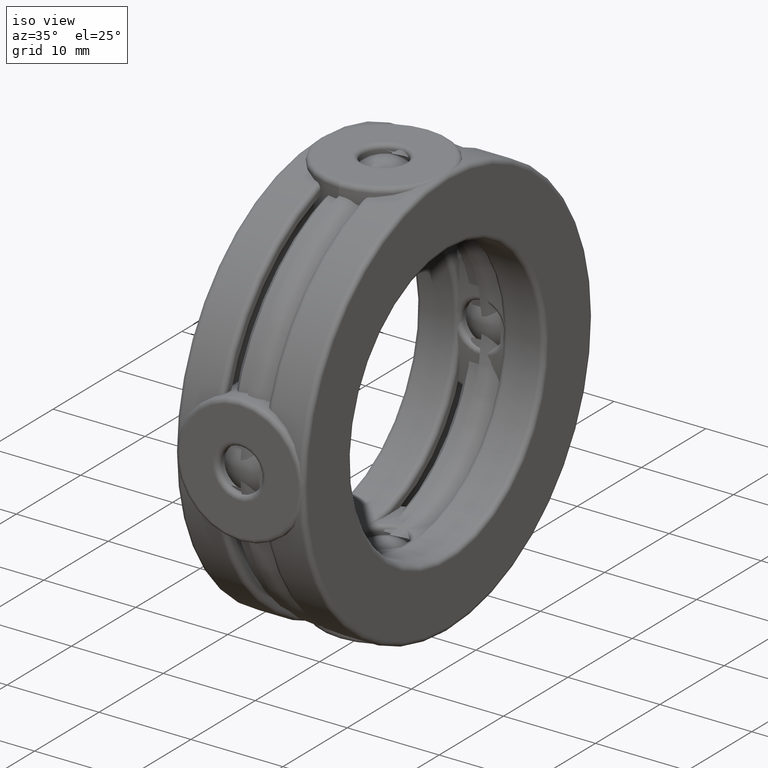
[diagram: clean part render]
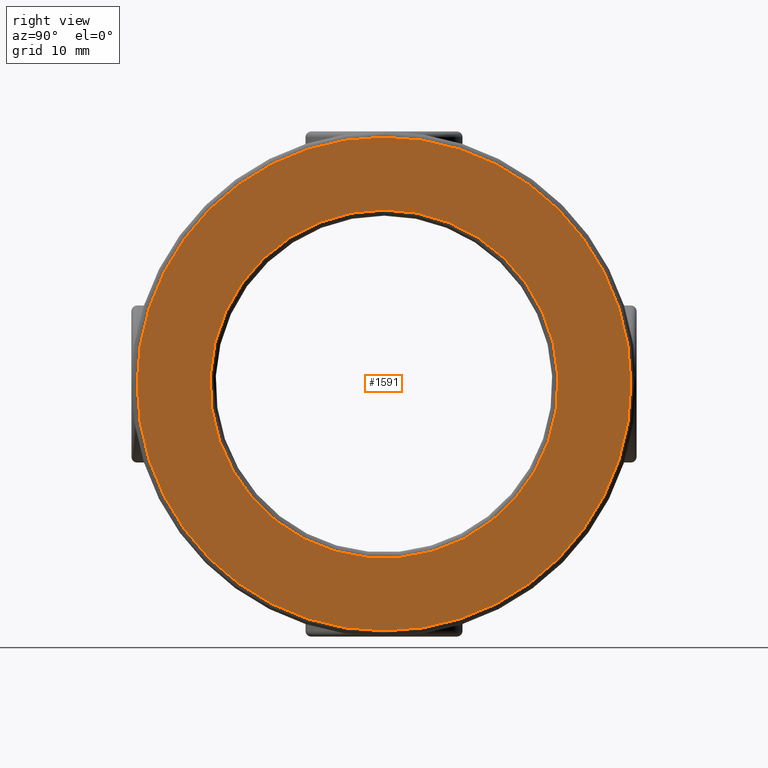
[diagram: tour spotlight — one face highlighted and labeled with its STEP entity id]
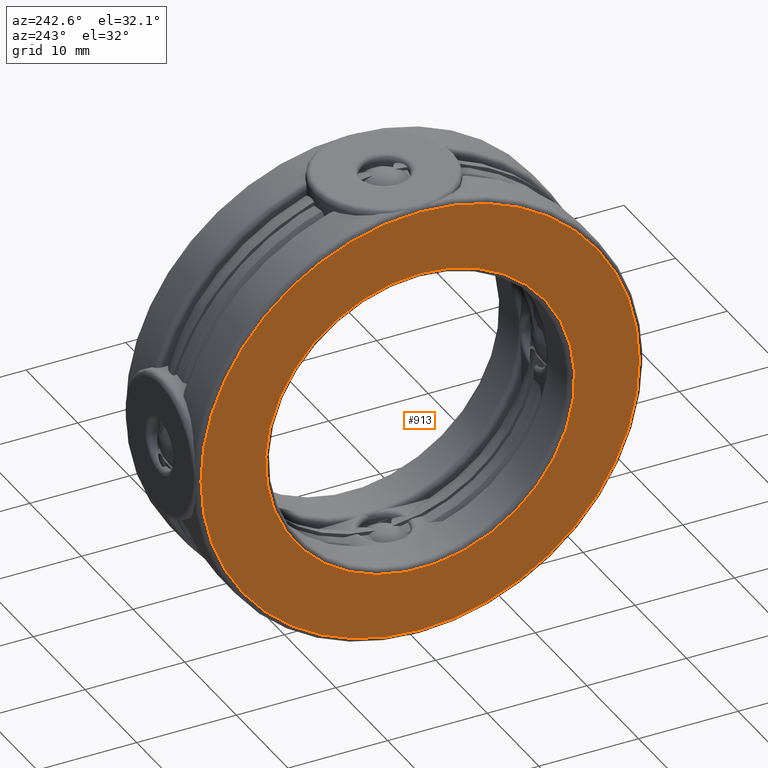
[diagram: tour spotlight — one face highlighted and labeled with its STEP entity id]
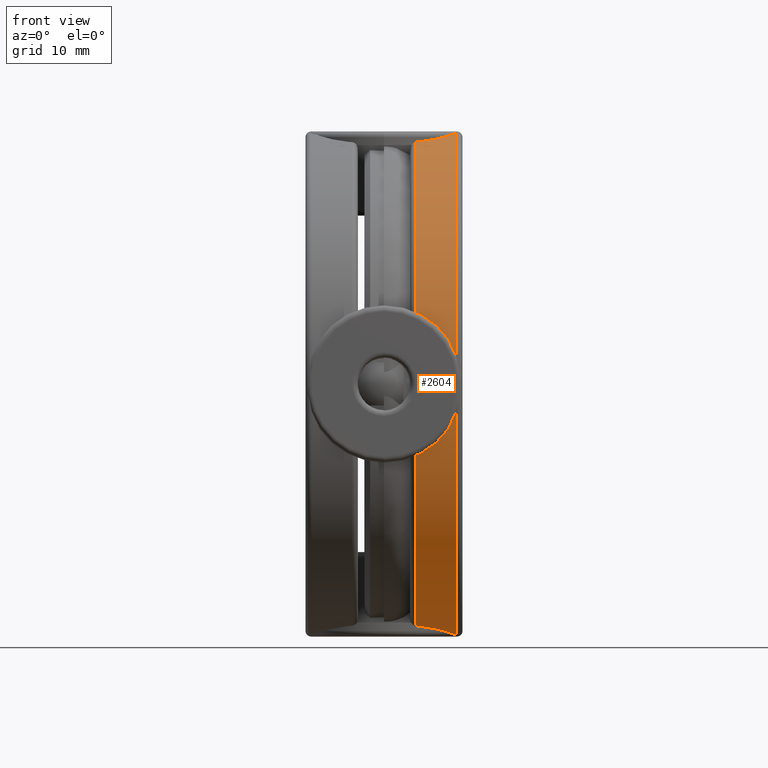
[diagram: tour spotlight — one face highlighted and labeled with its STEP entity id]
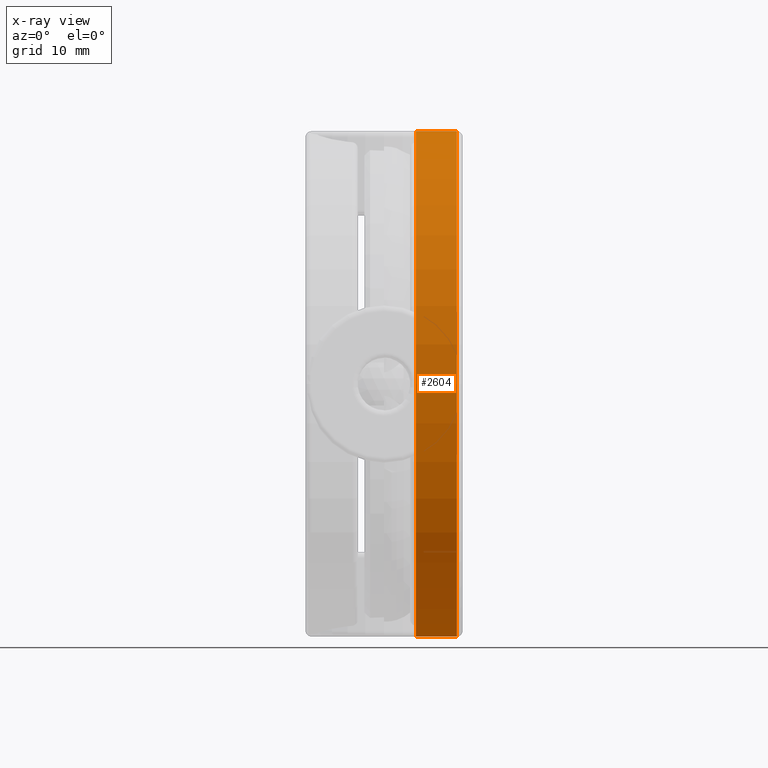
[diagram: x-ray of the same camera — body ghosted, this tour face saturated]
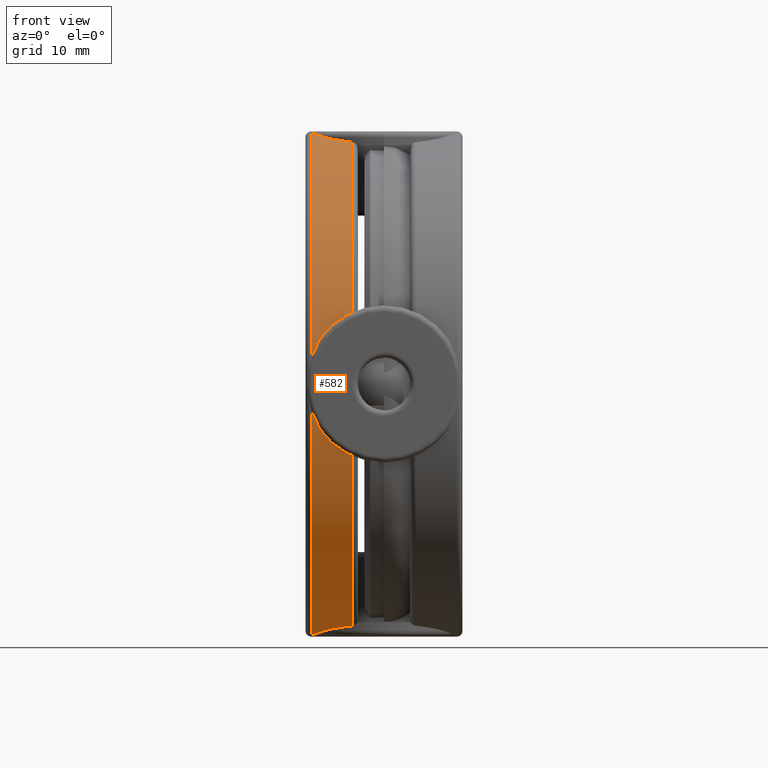
[diagram: tour spotlight — one face highlighted and labeled with its STEP entity id]
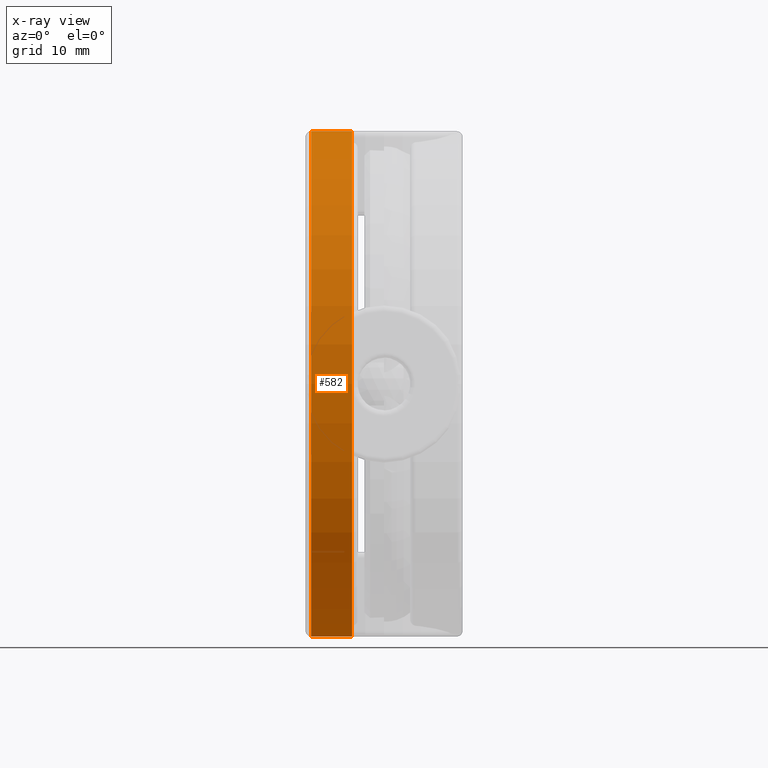
[diagram: x-ray of the same camera — body ghosted, this tour face saturated]
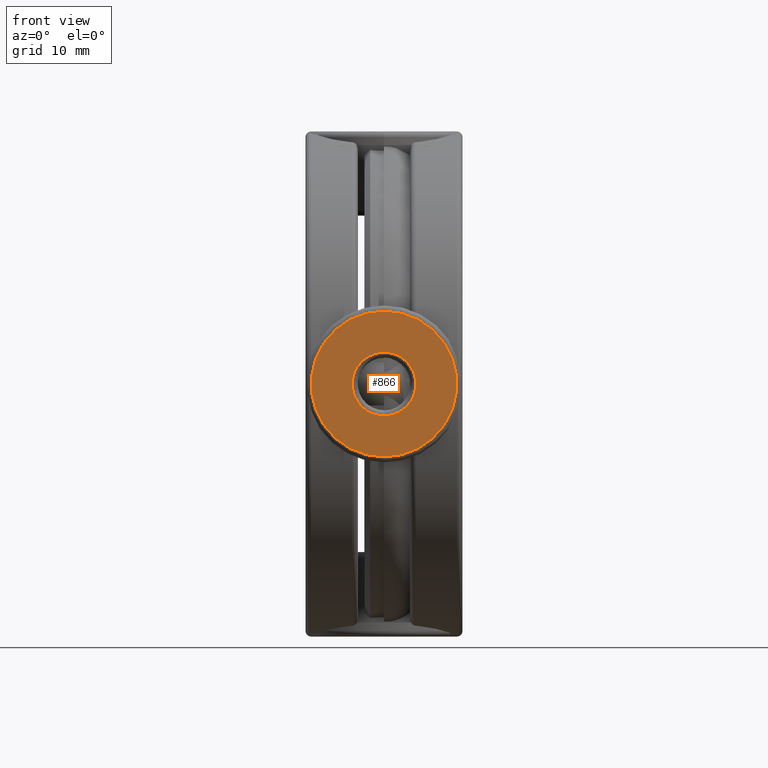
[diagram: tour spotlight — one face highlighted and labeled with its STEP entity id]
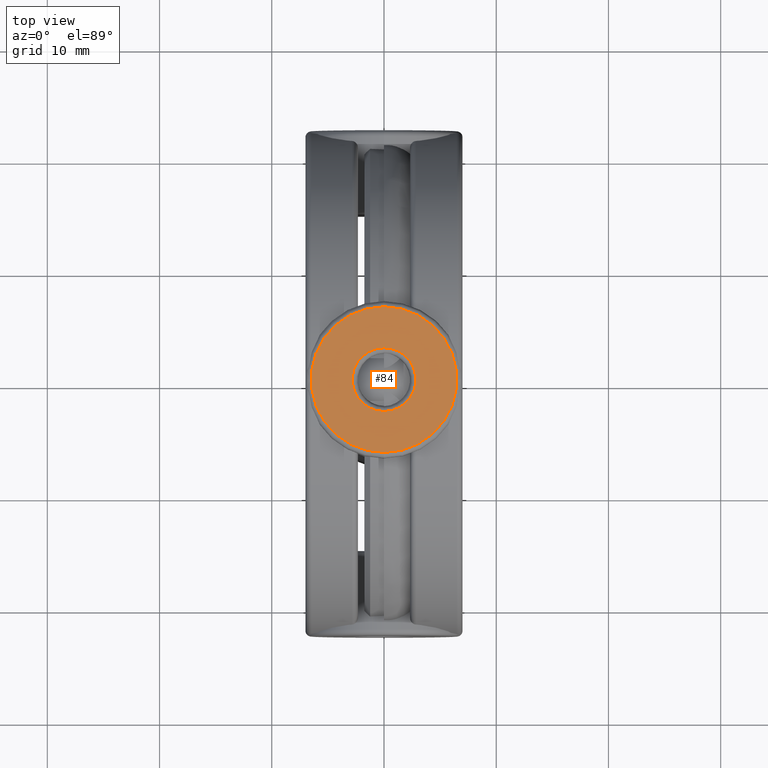
[diagram: tour spotlight — one face highlighted and labeled with its STEP entity id]
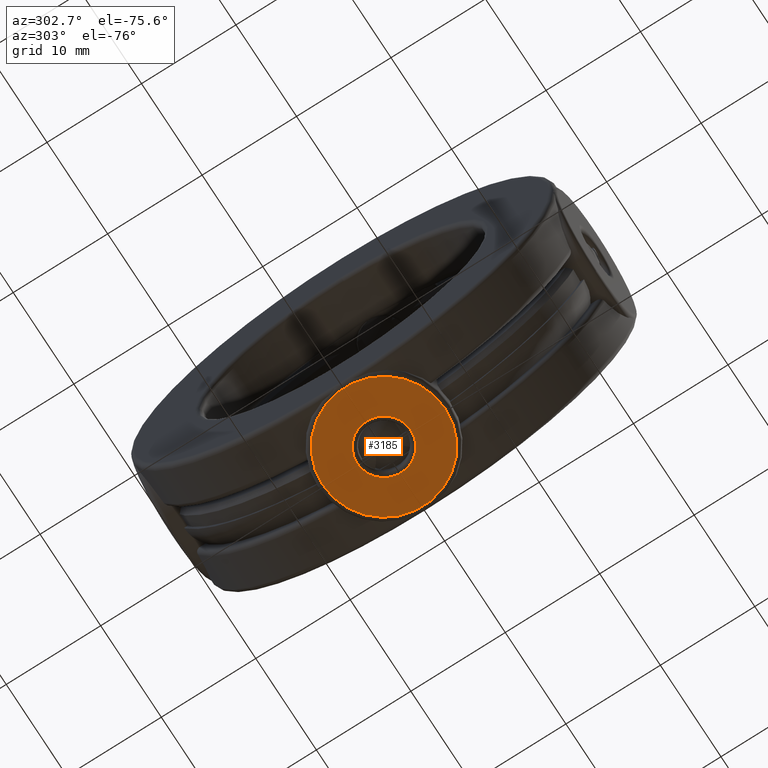
[diagram: tour spotlight — one face highlighted and labeled with its STEP entity id]
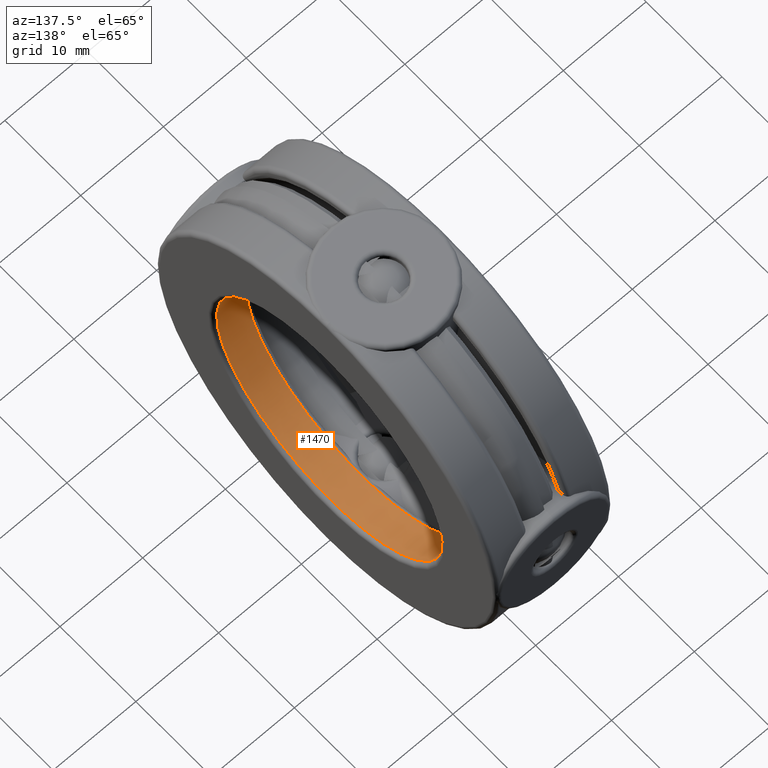
[diagram: tour spotlight — one face highlighted and labeled with its STEP entity id]
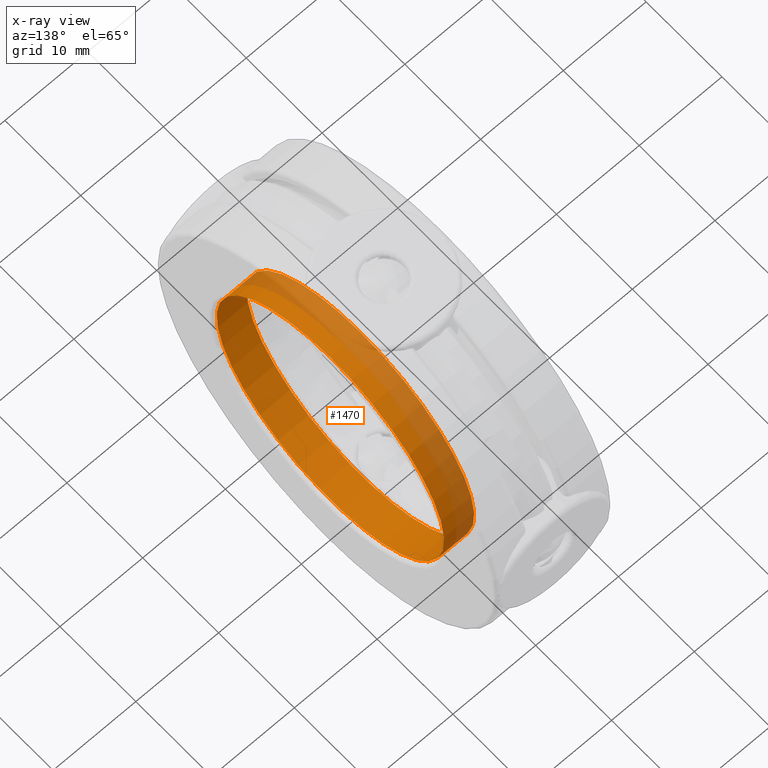
[diagram: x-ray of the same camera — body ghosted, this tour face saturated]
A machine part: a face-by-face anatomy tour. The part has 127 B-rep faces; the first image is the clean iso view, then the 8 largest visible faces are spotlighted one at a time (largest first), each with its STEP entity span.

Face 1 — right view, entity #1591. In plain terms, the highlighted planar face has unit normal (1, 0, 0).
Definition (entity closure, byte-faithful):
#115 = CIRCLE ( 'NONE', #143, 0.6105000000000000400 ) ;
#143 = AXIS2_PLACEMENT_3D ( 'NONE', #2057, #1284, #1010 ) ;
#314 = FACE_BOUND ( 'NONE', #1958, .T. ) ;
#434 = ORIENTED_EDGE ( 'NONE', *, *, #2361, .F. ) ;
#488 = CARTESIAN_POINT ( 'NONE',  ( 0.2755000000000001900, 0.0000000000000000000, 0.6105000000000000400 ) ) ;
#849 = ORIENTED_EDGE ( 'NONE', *, *, #2368, .T. ) ;
#1010 = DIRECTION ( 'NONE',  ( 0.0000000000000000000, 0.0000000000000000000, 1.000000000000000000 ) ) ;
#1284 = DIRECTION ( 'NONE',  ( -1.000000000000000000, -0.0000000000000000000, -0.0000000000000000000 ) ) ;
#1290 = CARTESIAN_POINT ( 'NONE',  ( 0.2755000000000001900, 0.0000000000000000000, 0.0000000000000000000 ) ) ;
#1591 = ADVANCED_FACE ( 'NONE', ( #314, #3150 ), #2640, .T. ) ;
#1701 = DIRECTION ( 'NONE',  ( 0.0000000000000000000, 0.0000000000000000000, -1.000000000000000000 ) ) ;
#1958 = EDGE_LOOP ( 'NONE', ( #849 ) ) ;
#2057 = CARTESIAN_POINT ( 'NONE',  ( 0.2755000000000001900, 0.0000000000000000000, 0.0000000000000000000 ) ) ;
#2129 = AXIS2_PLACEMENT_3D ( 'NONE', #2673, #2445, #1701 ) ;
#2273 = CARTESIAN_POINT ( 'NONE',  ( 0.2755000000000001900, 0.0000000000000000000, 0.8659999999999998800 ) ) ;
#2361 = EDGE_CURVE ( 'NONE', #2986, #2986, #2597, .T. ) ;
#2368 = EDGE_CURVE ( 'NONE', #3136, #3136, #115, .T. ) ;
#2445 = DIRECTION ( 'NONE',  ( 1.000000000000000000, 0.0000000000000000000, 0.0000000000000000000 ) ) ;
#2509 = AXIS2_PLACEMENT_3D ( 'NONE', #1290, #2778, #2786 ) ;
#2597 = CIRCLE ( 'NONE', #2509, 0.8659999999999998800 ) ;
#2640 = PLANE ( 'NONE',  #2129 ) ;
#2673 = CARTESIAN_POINT ( 'NONE',  ( 0.2755000000000001900, 0.0000000000000000000, 0.0000000000000000000 ) ) ;
#2705 = EDGE_LOOP ( 'NONE', ( #434 ) ) ;
#2778 = DIRECTION ( 'NONE',  ( -1.000000000000000000, -0.0000000000000000000, -0.0000000000000000000 ) ) ;
#2786 = DIRECTION ( 'NONE',  ( 0.0000000000000000000, 0.0000000000000000000, 1.000000000000000000 ) ) ;
#2986 = VERTEX_POINT ( 'NONE', #2273 ) ;
#3136 = VERTEX_POINT ( 'NONE', #488 ) ;
#3150 = FACE_OUTER_BOUND ( 'NONE', #2705, .T. ) ;

Face 2 — auxiliary view, entity #913. In plain terms, the highlighted planar face has unit normal (1, 0, 0).
Definition (entity closure, byte-faithful):
#62 = AXIS2_PLACEMENT_3D ( 'NONE', #2173, #683, #1689 ) ;
#375 = VERTEX_POINT ( 'NONE', #2475 ) ;
#561 = EDGE_LOOP ( 'NONE', ( #1749 ) ) ;
#683 = DIRECTION ( 'NONE',  ( -1.000000000000000000, -0.0000000000000000000, -0.0000000000000000000 ) ) ;
#753 = CARTESIAN_POINT ( 'NONE',  ( -0.2755000000000000200, 0.0000000000000000000, 0.0000000000000000000 ) ) ;
#913 = ADVANCED_FACE ( 'NONE', ( #1127, #2954 ), #988, .F. ) ;
#988 = PLANE ( 'NONE',  #1066 ) ;
#1001 = DIRECTION ( 'NONE',  ( 0.0000000000000000000, 0.0000000000000000000, -1.000000000000000000 ) ) ;
#1066 = AXIS2_PLACEMENT_3D ( 'NONE', #753, #2492, #1001 ) ;
#1070 = ORIENTED_EDGE ( 'NONE', *, *, #1924, .F. ) ;
#1074 = DIRECTION ( 'NONE',  ( -1.000000000000000000, -0.0000000000000000000, -0.0000000000000000000 ) ) ;
#1079 = VERTEX_POINT ( 'NONE', #1776 ) ;
#1127 = FACE_BOUND ( 'NONE', #2251, .T. ) ;
#1554 = DIRECTION ( 'NONE',  ( 0.0000000000000000000, 0.0000000000000000000, 1.000000000000000000 ) ) ;
#1689 = DIRECTION ( 'NONE',  ( 0.0000000000000000000, 0.0000000000000000000, 1.000000000000000000 ) ) ;
#1712 = AXIS2_PLACEMENT_3D ( 'NONE', #3048, #1074, #1554 ) ;
#1749 = ORIENTED_EDGE ( 'NONE', *, *, #2562, .T. ) ;
#1776 = CARTESIAN_POINT ( 'NONE',  ( -0.2755000000000000200, 0.0000000000000000000, 0.8659999999999999900 ) ) ;
#1857 = CIRCLE ( 'NONE', #62, 0.6105000000000000400 ) ;
#1924 = EDGE_CURVE ( 'NONE', #375, #375, #1857, .T. ) ;
#2173 = CARTESIAN_POINT ( 'NONE',  ( -0.2755000000000000200, 0.0000000000000000000, 0.0000000000000000000 ) ) ;
#2251 = EDGE_LOOP ( 'NONE', ( #1070 ) ) ;
#2475 = CARTESIAN_POINT ( 'NONE',  ( -0.2755000000000000200, 0.0000000000000000000, 0.6105000000000000400 ) ) ;
#2492 = DIRECTION ( 'NONE',  ( 1.000000000000000000, 0.0000000000000000000, 0.0000000000000000000 ) ) ;
#2562 = EDGE_CURVE ( 'NONE', #1079, #1079, #2861, .T. ) ;
#2861 = CIRCLE ( 'NONE', #1712, 0.8659999999999999900 ) ;
#2954 = FACE_OUTER_BOUND ( 'NONE', #561, .T. ) ;
#3048 = CARTESIAN_POINT ( 'NONE',  ( -0.2755000000000000200, 0.0000000000000000000, 0.0000000000000000000 ) ) ;

Face 3 — front view, entity #2604. An x-ray twin of the same camera follows (body ghosted, this face saturated) — the face is partly hidden behind the body. In plain terms, the highlighted cylindrical surface (bore or boss wall) has radius 22.5044 mm, axis along (-1, -0, -0).
Definition (entity closure, byte-faithful):
#18 = EDGE_LOOP ( 'NONE', ( #1002 ) ) ;
#180 = VERTEX_POINT ( 'NONE', #1697 ) ;
#206 = ORIENTED_EDGE ( 'NONE', *, *, #2192, .T. ) ;
#240 = CARTESIAN_POINT ( 'NONE',  ( 0.2555000000000006200, 0.0000000000000000000, 0.8859999999999999000 ) ) ;
#283 = DIRECTION ( 'NONE',  ( -1.000000000000000000, -0.0000000000000000000, -0.0000000000000000000 ) ) ;
#298 = DIRECTION ( 'NONE',  ( -1.000000000000000000, -0.0000000000000000000, -0.0000000000000000000 ) ) ;
#347 = EDGE_LOOP ( 'NONE', ( #206 ) ) ;
#382 = EDGE_CURVE ( 'NONE', #180, #180, #2639, .T. ) ;
#546 = DIRECTION ( 'NONE',  ( 0.0000000000000000000, 0.0000000000000000000, 1.000000000000000000 ) ) ;
#702 = CIRCLE ( 'NONE', #2707, 0.8859999999999999000 ) ;
#721 = CARTESIAN_POINT ( 'NONE',  ( 0.2555000000000006200, 0.0000000000000000000, 0.0000000000000000000 ) ) ;
#970 = VERTEX_POINT ( 'NONE', #240 ) ;
#1002 = ORIENTED_EDGE ( 'NONE', *, *, #382, .F. ) ;
#1080 = FACE_OUTER_BOUND ( 'NONE', #347, .T. ) ;
#1312 = CARTESIAN_POINT ( 'NONE',  ( 0.1118351700000004600, 0.0000000000000000000, 0.0000000000000000000 ) ) ;
#1583 = AXIS2_PLACEMENT_3D ( 'NONE', #1312, #298, #2782 ) ;
#1697 = CARTESIAN_POINT ( 'NONE',  ( 0.1118351700000004600, 0.0000000000000000000, 0.8859999999999999000 ) ) ;
#1774 = AXIS2_PLACEMENT_3D ( 'NONE', #2537, #283, #546 ) ;
#1781 = CYLINDRICAL_SURFACE ( 'NONE', #1774, 0.8859999999999999000 ) ;
#1986 = FACE_OUTER_BOUND ( 'NONE', #18, .T. ) ;
#2192 = EDGE_CURVE ( 'NONE', #970, #970, #702, .T. ) ;
#2501 = DIRECTION ( 'NONE',  ( 0.0000000000000000000, 0.0000000000000000000, 1.000000000000000000 ) ) ;
#2537 = CARTESIAN_POINT ( 'NONE',  ( 0.0000000000000000000, 0.0000000000000000000, 0.0000000000000000000 ) ) ;
#2604 = ADVANCED_FACE ( 'NONE', ( #1986, #1080 ), #1781, .T. ) ;
#2639 = CIRCLE ( 'NONE', #1583, 0.8859999999999999000 ) ;
#2707 = AXIS2_PLACEMENT_3D ( 'NONE', #721, #2953, #2501 ) ;
#2782 = DIRECTION ( 'NONE',  ( 0.0000000000000000000, 0.0000000000000000000, 1.000000000000000000 ) ) ;
#2953 = DIRECTION ( 'NONE',  ( -1.000000000000000000, -0.0000000000000000000, -0.0000000000000000000 ) ) ;

Face 4 — front view, entity #582. An x-ray twin of the same camera follows (body ghosted, this face saturated) — the face is partly hidden behind the body. In plain terms, the highlighted cylindrical surface (bore or boss wall) has radius 22.5044 mm, axis along (-1, -0, -0).
Definition (entity closure, byte-faithful):
#242 = CIRCLE ( 'NONE', #2790, 0.8859999999999999000 ) ;
#345 = CIRCLE ( 'NONE', #3092, 0.8859999999999999000 ) ;
#582 = ADVANCED_FACE ( 'NONE', ( #1444, #3181 ), #2301, .T. ) ;
#588 = DIRECTION ( 'NONE',  ( -1.000000000000000000, -0.0000000000000000000, -0.0000000000000000000 ) ) ;
#656 = DIRECTION ( 'NONE',  ( -1.000000000000000000, -0.0000000000000000000, -0.0000000000000000000 ) ) ;
#910 = DIRECTION ( 'NONE',  ( 0.0000000000000000000, 0.0000000000000000000, 1.000000000000000000 ) ) ;
#1057 = ORIENTED_EDGE ( 'NONE', *, *, #1714, .T. ) ;
#1090 = CARTESIAN_POINT ( 'NONE',  ( -0.2555000000000000000, 0.0000000000000000000, 0.0000000000000000000 ) ) ;
#1238 = VERTEX_POINT ( 'NONE', #1527 ) ;
#1322 = VERTEX_POINT ( 'NONE', #3012 ) ;
#1444 = FACE_OUTER_BOUND ( 'NONE', #2391, .T. ) ;
#1527 = CARTESIAN_POINT ( 'NONE',  ( -0.2555000000000000000, 0.0000000000000000000, 0.8859999999999999000 ) ) ;
#1570 = DIRECTION ( 'NONE',  ( 0.0000000000000000000, 0.0000000000000000000, 1.000000000000000000 ) ) ;
#1714 = EDGE_CURVE ( 'NONE', #1322, #1322, #242, .T. ) ;
#1730 = ORIENTED_EDGE ( 'NONE', *, *, #2400, .F. ) ;
#1815 = DIRECTION ( 'NONE',  ( 0.0000000000000000000, 0.0000000000000000000, 1.000000000000000000 ) ) ;
#2097 = DIRECTION ( 'NONE',  ( -1.000000000000000000, -0.0000000000000000000, -0.0000000000000000000 ) ) ;
#2132 = AXIS2_PLACEMENT_3D ( 'NONE', #2574, #2097, #1815 ) ;
#2301 = CYLINDRICAL_SURFACE ( 'NONE', #2132, 0.8859999999999999000 ) ;
#2350 = CARTESIAN_POINT ( 'NONE',  ( -0.1118351699999998900, 0.0000000000000000000, 0.0000000000000000000 ) ) ;
#2391 = EDGE_LOOP ( 'NONE', ( #1730 ) ) ;
#2400 = EDGE_CURVE ( 'NONE', #1238, #1238, #345, .T. ) ;
#2574 = CARTESIAN_POINT ( 'NONE',  ( 0.0000000000000000000, 0.0000000000000000000, 0.0000000000000000000 ) ) ;
#2790 = AXIS2_PLACEMENT_3D ( 'NONE', #2350, #656, #910 ) ;
#3012 = CARTESIAN_POINT ( 'NONE',  ( -0.1118351699999998900, 0.0000000000000000000, 0.8859999999999999000 ) ) ;
#3084 = EDGE_LOOP ( 'NONE', ( #1057 ) ) ;
#3092 = AXIS2_PLACEMENT_3D ( 'NONE', #1090, #588, #1570 ) ;
#3181 = FACE_OUTER_BOUND ( 'NONE', #3084, .T. ) ;

Face 5 — front view, entity #866. In plain terms, the highlighted planar face has unit normal (0, 1, 0).
Definition (entity closure, byte-faithful):
#274 = CARTESIAN_POINT ( 'NONE',  ( 0.0000000000000000000, -0.8859999999999999000, -0.1118351700000004600 ) ) ;
#645 = DIRECTION ( 'NONE',  ( 0.0000000000000000000, 0.0000000000000000000, -1.000000000000000000 ) ) ;
#779 = PLANE ( 'NONE',  #900 ) ;
#866 = ADVANCED_FACE ( 'NONE', ( #2608, #1294 ), #779, .F. ) ;
#886 = VERTEX_POINT ( 'NONE', #274 ) ;
#894 = DIRECTION ( 'NONE',  ( 0.0000000000000000000, 0.0000000000000000000, -1.000000000000000000 ) ) ;
#898 = CARTESIAN_POINT ( 'NONE',  ( 0.0000000000000000000, -0.8859999999999999000, 0.0000000000000000000 ) ) ;
#900 = AXIS2_PLACEMENT_3D ( 'NONE', #2520, #1515, #1523 ) ;
#1139 = EDGE_CURVE ( 'NONE', #1985, #1985, #1753, .T. ) ;
#1294 = FACE_OUTER_BOUND ( 'NONE', #3074, .T. ) ;
#1494 = ORIENTED_EDGE ( 'NONE', *, *, #3107, .F. ) ;
#1498 = EDGE_LOOP ( 'NONE', ( #1494 ) ) ;
#1515 = DIRECTION ( 'NONE',  ( 0.0000000000000000000, 1.000000000000000000, 0.0000000000000000000 ) ) ;
#1523 = DIRECTION ( 'NONE',  ( 0.0000000000000000000, 0.0000000000000000000, 1.000000000000000000 ) ) ;
#1683 = DIRECTION ( 'NONE',  ( 0.0000000000000000000, -1.000000000000000000, 0.0000000000000000000 ) ) ;
#1706 = CARTESIAN_POINT ( 'NONE',  ( 0.0000000000000000000, -0.8859999999999999000, -0.2555000000000006200 ) ) ;
#1753 = CIRCLE ( 'NONE', #2607, 0.2555000000000006200 ) ;
#1985 = VERTEX_POINT ( 'NONE', #1706 ) ;
#2147 = DIRECTION ( 'NONE',  ( 0.0000000000000000000, -1.000000000000000000, 0.0000000000000000000 ) ) ;
#2335 = AXIS2_PLACEMENT_3D ( 'NONE', #3159, #1683, #894 ) ;
#2447 = CIRCLE ( 'NONE', #2335, 0.1118351700000004600 ) ;
#2520 = CARTESIAN_POINT ( 'NONE',  ( 0.0000000000000000000, -0.8859999999999999000, 0.0000000000000000000 ) ) ;
#2607 = AXIS2_PLACEMENT_3D ( 'NONE', #898, #2147, #645 ) ;
#2608 = FACE_BOUND ( 'NONE', #1498, .T. ) ;
#3074 = EDGE_LOOP ( 'NONE', ( #3113 ) ) ;
#3107 = EDGE_CURVE ( 'NONE', #886, #886, #2447, .T. ) ;
#3113 = ORIENTED_EDGE ( 'NONE', *, *, #1139, .T. ) ;
#3159 = CARTESIAN_POINT ( 'NONE',  ( 0.0000000000000000000, -0.8859999999999999000, 0.0000000000000000000 ) ) ;

Face 6 — top view, entity #84. In plain terms, the highlighted planar face has unit normal (0, -0, -1).
Definition (entity closure, byte-faithful):
#84 = ADVANCED_FACE ( 'NONE', ( #2497, #2910 ), #236, .F. ) ;
#236 = PLANE ( 'NONE',  #1170 ) ;
#357 = DIRECTION ( 'NONE',  ( 0.0000000000000000000, 1.047444401652940000E-014, 1.000000000000000000 ) ) ;
#510 = CARTESIAN_POINT ( 'NONE',  ( 0.0000000000000000000, -0.2554999999999912900, 0.8860000000000026700 ) ) ;
#671 = CIRCLE ( 'NONE', #2299, 0.1118351700000004600 ) ;
#674 = AXIS2_PLACEMENT_3D ( 'NONE', #2834, #357, #1859 ) ;
#780 = DIRECTION ( 'NONE',  ( 0.0000000000000000000, 1.000000000000000000, -1.047444401652940000E-014 ) ) ;
#1101 = ORIENTED_EDGE ( 'NONE', *, *, #1695, .F. ) ;
#1170 = AXIS2_PLACEMENT_3D ( 'NONE', #2021, #2973, #780 ) ;
#1274 = CARTESIAN_POINT ( 'NONE',  ( 0.0000000000000000000, 9.280357398645047400E-015, 0.8859999999999999000 ) ) ;
#1345 = EDGE_CURVE ( 'NONE', #2333, #2333, #3073, .T. ) ;
#1695 = EDGE_CURVE ( 'NONE', #1821, #1821, #671, .T. ) ;
#1726 = EDGE_LOOP ( 'NONE', ( #1101 ) ) ;
#1821 = VERTEX_POINT ( 'NONE', #2007 ) ;
#1859 = DIRECTION ( 'NONE',  ( 0.0000000000000000000, -1.000000000000000000, 1.069216435876421400E-014 ) ) ;
#1883 = ORIENTED_EDGE ( 'NONE', *, *, #1345, .T. ) ;
#2007 = CARTESIAN_POINT ( 'NONE',  ( 0.0000000000000000000, -0.1118351699999911600, 0.8860000000000011200 ) ) ;
#2021 = CARTESIAN_POINT ( 'NONE',  ( 0.0000000000000000000, 9.280357398645047400E-015, 0.8859999999999999000 ) ) ;
#2076 = EDGE_LOOP ( 'NONE', ( #1883 ) ) ;
#2299 = AXIS2_PLACEMENT_3D ( 'NONE', #1274, #2305, #2532 ) ;
#2305 = DIRECTION ( 'NONE',  ( 0.0000000000000000000, 1.047444401652940000E-014, 1.000000000000000000 ) ) ;
#2333 = VERTEX_POINT ( 'NONE', #510 ) ;
#2497 = FACE_BOUND ( 'NONE', #1726, .T. ) ;
#2532 = DIRECTION ( 'NONE',  ( 0.0000000000000000000, -1.000000000000000000, 1.099235238028353200E-014 ) ) ;
#2834 = CARTESIAN_POINT ( 'NONE',  ( 0.0000000000000000000, 9.280357398645047400E-015, 0.8859999999999999000 ) ) ;
#2910 = FACE_OUTER_BOUND ( 'NONE', #2076, .T. ) ;
#2973 = DIRECTION ( 'NONE',  ( 0.0000000000000000000, -1.047444401652940000E-014, -1.000000000000000000 ) ) ;
#3073 = CIRCLE ( 'NONE', #674, 0.2555000000000006200 ) ;

Face 7 — auxiliary view, entity #3185. In plain terms, the highlighted planar face has unit normal (0, 0, 1).
Definition (entity closure, byte-faithful):
#15 = EDGE_LOOP ( 'NONE', ( #2961 ) ) ;
#191 = AXIS2_PLACEMENT_3D ( 'NONE', #3141, #2655, #3123 ) ;
#224 = DIRECTION ( 'NONE',  ( 0.0000000000000000000, -1.000000000000000000, 3.491481338843133000E-015 ) ) ;
#249 = ORIENTED_EDGE ( 'NONE', *, *, #695, .T. ) ;
#618 = EDGE_CURVE ( 'NONE', #1662, #1662, #3169, .T. ) ;
#695 = EDGE_CURVE ( 'NONE', #1397, #1397, #2113, .T. ) ;
#707 = AXIS2_PLACEMENT_3D ( 'NONE', #741, #1743, #224 ) ;
#741 = CARTESIAN_POINT ( 'NONE',  ( 0.0000000000000000000, -3.093452466215015900E-015, -0.8859999999999999000 ) ) ;
#968 = PLANE ( 'NONE',  #707 ) ;
#1218 = CARTESIAN_POINT ( 'NONE',  ( 0.0000000000000000000, 0.1118351699999973600, -0.8860000000000003400 ) ) ;
#1397 = VERTEX_POINT ( 'NONE', #2205 ) ;
#1622 = DIRECTION ( 'NONE',  ( 0.0000000000000000000, -3.491481338843133400E-015, -1.000000000000000000 ) ) ;
#1662 = VERTEX_POINT ( 'NONE', #1218 ) ;
#1743 = DIRECTION ( 'NONE',  ( 0.0000000000000000000, 3.491481338843133000E-015, 1.000000000000000000 ) ) ;
#1848 = EDGE_LOOP ( 'NONE', ( #249 ) ) ;
#2113 = CIRCLE ( 'NONE', #3021, 0.2555000000000006200 ) ;
#2133 = DIRECTION ( 'NONE',  ( 0.0000000000000000000, 1.000000000000000000, -3.742257525567474800E-015 ) ) ;
#2205 = CARTESIAN_POINT ( 'NONE',  ( 0.0000000000000000000, 0.2554999999999975100, -0.8860000000000009000 ) ) ;
#2626 = FACE_BOUND ( 'NONE', #15, .T. ) ;
#2655 = DIRECTION ( 'NONE',  ( 0.0000000000000000000, -3.491481338843133400E-015, -1.000000000000000000 ) ) ;
#2961 = ORIENTED_EDGE ( 'NONE', *, *, #618, .F. ) ;
#3021 = AXIS2_PLACEMENT_3D ( 'NONE', #3106, #1622, #2133 ) ;
#3106 = CARTESIAN_POINT ( 'NONE',  ( 0.0000000000000000000, -3.093452466215015900E-015, -0.8859999999999999000 ) ) ;
#3123 = DIRECTION ( 'NONE',  ( 0.0000000000000000000, 1.000000000000000000, -3.664117460094510800E-015 ) ) ;
#3130 = FACE_OUTER_BOUND ( 'NONE', #1848, .T. ) ;
#3141 = CARTESIAN_POINT ( 'NONE',  ( 0.0000000000000000000, -3.093452466215015900E-015, -0.8859999999999999000 ) ) ;
#3169 = CIRCLE ( 'NONE', #191, 0.1118351700000004600 ) ;
#3185 = ADVANCED_FACE ( 'NONE', ( #2626, #3130 ), #968, .F. ) ;

Face 8 — auxiliary view, entity #1470. An x-ray twin of the same camera follows (body ghosted, this face saturated) — the face is partly hidden behind the body. In plain terms, the highlighted cylindrical surface (bore or boss wall) has radius 14.9987 mm, axis along (-1, -0, -0).
Definition (entity closure, byte-faithful):
#86 = DIRECTION ( 'NONE',  ( -1.000000000000000000, -0.0000000000000000000, -0.0000000000000000000 ) ) ;
#254 = EDGE_CURVE ( 'NONE', #2174, #2174, #2225, .T. ) ;
#256 = EDGE_LOOP ( 'NONE', ( #2840 ) ) ;
#346 = DIRECTION ( 'NONE',  ( 0.0000000000000000000, 0.0000000000000000000, 1.000000000000000000 ) ) ;
#585 = EDGE_CURVE ( 'NONE', #2825, #2825, #2377, .T. ) ;
#701 = DIRECTION ( 'NONE',  ( -1.000000000000000000, -0.0000000000000000000, -0.0000000000000000000 ) ) ;
#742 = DIRECTION ( 'NONE',  ( 0.0000000000000000000, 0.0000000000000000000, 1.000000000000000000 ) ) ;
#1062 = AXIS2_PLACEMENT_3D ( 'NONE', #2904, #701, #742 ) ;
#1414 = EDGE_LOOP ( 'NONE', ( #2252 ) ) ;
#1470 = ADVANCED_FACE ( 'NONE', ( #2039, #3006 ), #3036, .F. ) ;
#1584 = CARTESIAN_POINT ( 'NONE',  ( 0.2555000000000006200, 0.0000000000000000000, 0.0000000000000000000 ) ) ;
#1838 = DIRECTION ( 'NONE',  ( -1.000000000000000000, -0.0000000000000000000, -0.0000000000000000000 ) ) ;
#1959 = CARTESIAN_POINT ( 'NONE',  ( 0.2555000000000006200, 0.0000000000000000000, 0.5905000000000000200 ) ) ;
#2039 = FACE_OUTER_BOUND ( 'NONE', #1414, .T. ) ;
#2082 = DIRECTION ( 'NONE',  ( 0.0000000000000000000, 0.0000000000000000000, 1.000000000000000000 ) ) ;
#2174 = VERTEX_POINT ( 'NONE', #2721 ) ;
#2225 = CIRCLE ( 'NONE', #3122, 0.5905000000000000200 ) ;
#2252 = ORIENTED_EDGE ( 'NONE', *, *, #254, .T. ) ;
#2364 = AXIS2_PLACEMENT_3D ( 'NONE', #1584, #1838, #346 ) ;
#2377 = CIRCLE ( 'NONE', #2364, 0.5905000000000000200 ) ;
#2691 = CARTESIAN_POINT ( 'NONE',  ( 0.1118351700000004600, 0.0000000000000000000, 0.0000000000000000000 ) ) ;
#2721 = CARTESIAN_POINT ( 'NONE',  ( 0.1118351700000004600, 0.0000000000000000000, 0.5905000000000000200 ) ) ;
#2825 = VERTEX_POINT ( 'NONE', #1959 ) ;
#2840 = ORIENTED_EDGE ( 'NONE', *, *, #585, .F. ) ;
#2904 = CARTESIAN_POINT ( 'NONE',  ( 0.0000000000000000000, 0.0000000000000000000, 0.0000000000000000000 ) ) ;
#3006 = FACE_OUTER_BOUND ( 'NONE', #256, .T. ) ;
#3036 = CYLINDRICAL_SURFACE ( 'NONE', #1062, 0.5905000000000000200 ) ;
#3122 = AXIS2_PLACEMENT_3D ( 'NONE', #2691, #86, #2082 ) ;